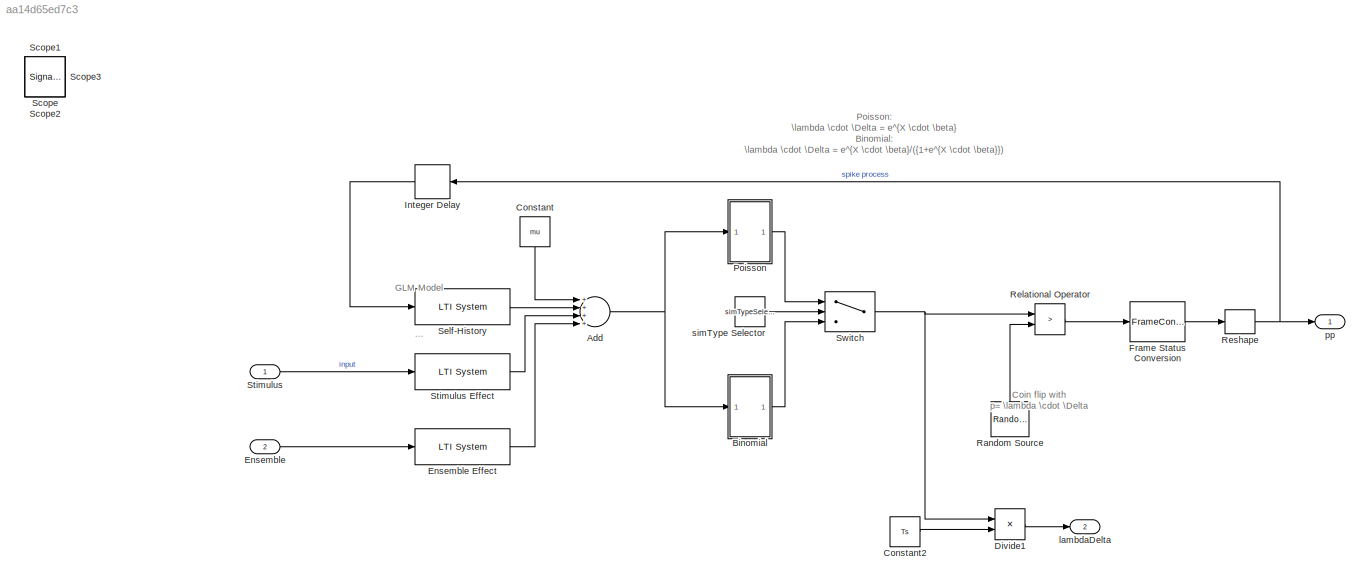
MODEL slx_aa14d65ed7c3
KIND model
BLOCK [Sum] Add
  InputSameDT = off
  Inputs = ++++
  OutDataTypeStr = Inherit: Inherit via internal rule
  Ports = [4, 1]
  SaturateOnIntegerOverflow = off
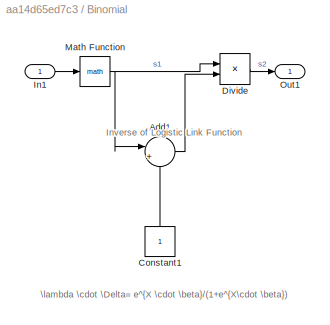
BLOCK [SubSystem] Binomial
  FunctionWithSeparateData = off
  MaskHideContents = off
  MinAlgLoopOccurrences = off
  Opaque = off
  Ports = [1, 1]
  PropExecContextOutsideSubsystem = off
  RTWSystemCode = Auto
  RequestExecContextInheritance = off
BLOCK [Sum] Binomial/Add1
  IconShape = round
  InputSameDT = off
  Inputs = |++
  OutDataTypeStr = Inherit: Inherit via internal rule
  Ports = [2, 1]
  SaturateOnIntegerOverflow = off
BLOCK [Constant] Binomial/Constant1
BLOCK [Product] Binomial/Divide
  InputSameDT = off
  Inputs = */
  OutDataTypeStr = Inherit: Inherit via internal rule
  Ports = [2, 1]
  RndMeth = Floor
  SaturateOnIntegerOverflow = off
BLOCK [Inport] Binomial/In1
  IconDisplay = Port number
BLOCK [Math] Binomial/Math Function
  Ports = [1, 1]
BLOCK [Outport] Binomial/Out1
  IconDisplay = Port number
BLOCK [Constant] Constant
  Value = mu
BLOCK [Constant] Constant2
  Value = Ts
BLOCK [Product] Divide1
  InputSameDT = off
  Inputs = */
  OutDataTypeStr = Inherit: Inherit via internal rule
  Ports = [2, 1]
  RndMeth = Floor
  SaturateOnIntegerOverflow = off
BLOCK [Inport] Ensemble
  IconDisplay = Port number
  Port = 2
BLOCK [Reference] Ensemble Effect  REF=cstblocks/LTI System
  IC = []
  Ports = [1, 1]
  SourceBlock = cstblocks/LTI System
  SourceType = LTI Block
  sys = E
BLOCK [FrameConversion] Frame Status Conversion
  OutFrame = Sample-based
  Ports = [1, 1]
BLOCK [Delay] Integer Delay
  DelayLength = 1
  InputPortMap = u0
  Ports = [1, 1]
  UserDataPersistent = on
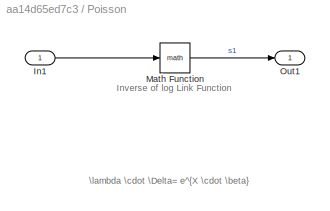
BLOCK [SubSystem] Poisson
  FunctionWithSeparateData = off
  MaskHideContents = off
  MinAlgLoopOccurrences = off
  Opaque = off
  Ports = [1, 1]
  PropExecContextOutsideSubsystem = off
  RTWSystemCode = Auto
  RequestExecContextInheritance = off
BLOCK [Inport] Poisson/In1
  IconDisplay = Port number
BLOCK [Math] Poisson/Math Function
  Ports = [1, 1]
BLOCK [Outport] Poisson/Out1
  IconDisplay = Port number
BLOCK [Reference] Random Source  REF=dspsrcs4/Random
Source
  CltLength = 12
  DataType = Double
  Diagnostics = AllowInheritedTsInSrc
  IsInherit = on
  MaxVal = 1
  MeanVal = 0
  MinVal = 0
  NormMethod = Ziggurat
  OutComplex = Real
  Ports = [0, 1]
  RepMode = Not repeatable
  SampFrame = dsp_sampFrame
  SampMode = Continuous
  SampTime = Ts
  SourceBlock = dspsrcs4/Random\nSource
  SourceType = Random Source
  SrcType = Uniform
  UserDataPersistent = on
  VarVal = 1
  rawSeed = seed
BLOCK [RelationalOperator] Relational Operator
  Operator = >
  OutDataTypeStr = float('double')
  Ports = [2, 1]
BLOCK [Reshape] Reshape
  OutputDimensions = [sampPerFrame,max(length(P),length(seed))]
  Ports = [1, 1]
BLOCK [SignalViewerScope] Scope
  IOType = viewer
  MaxDataPoints = 7500
  NumInputPorts = 1
  Ports = []
  RefreshTime = 0.035000
  ShowDataMarkers = off
  ShowLegends = off
  TimeRange = 10
BLOCK [SignalViewerScope] Scope1
  IOType = viewer
  MaxDataPoints = 7500
  NumInputPorts = 1
  Ports = []
  RefreshTime = 0.035000
  SaveName = ScopeData1
  ShowDataMarkers = off
  ShowLegends = off
BLOCK [SignalViewerScope] Scope2
  IOType = viewer
  MaxDataPoints = 7500
  NumInputPorts = 1
  Ports = []
  RefreshTime = 0.035000
  SaveName = ScopeData2
  ShowDataMarkers = off
  ShowLegends = off
BLOCK [SignalViewerScope] Scope3
  IOType = viewer
  MaxDataPoints = 7500
  NumInputPorts = 1
  Ports = []
  RefreshTime = 0.035000
  SaveName = ScopeData3
  ShowDataMarkers = off
  ShowLegends = off
  TimeRange = 3.199999999999999
  YMax = 0.02380397727272728
  YMin = 0.009803977272727278
BLOCK [Reference] Self-History  REF=cstblocks/LTI System
  IC = []
  Ports = [1, 1]
  SourceBlock = cstblocks/LTI System
  SourceType = LTI Block
  sys = H
BLOCK [Inport] Stimulus
  IconDisplay = Port number
BLOCK [Reference] Stimulus Effect  REF=cstblocks/LTI System
  IC = []
  Ports = [1, 1]
  SourceBlock = cstblocks/LTI System
  SourceType = LTI Block
  sys = S
BLOCK [Switch] Switch
  Criteria = u2 ~= 0
  InputSameDT = off
  SaturateOnIntegerOverflow = off
BLOCK [Outport] lambdaDelta
  IconDisplay = Port number
  Port = 2
BLOCK [Outport] pp
  IconDisplay = Port number
BLOCK [Constant] simType Selector
  Value = simTypeSelect
ANNOTATION (root): Coin flip with p= \lambda \cdot \Delta .
ANNOTATION (root): GLM Model .
ANNOTATION (root): Poisson: \lambda \cdot \Delta = e^{X \cdot \beta} Binomial: \lambda \cdot \Delta = e^{X \cdot \beta}/({1+e^{X \cdot \beta}})
ANNOTATION Binomial: Inverse of Logistic Link Function .
ANNOTATION Binomial: \lambda \cdot \Delta= e^{X \cdot \beta}/(1+e^{X\cdot \beta})
ANNOTATION Poisson: Inverse of log Link Function .
ANNOTATION Poisson: \lambda \cdot \Delta= e^{X \cdot \beta}
NET Add:1 -> Binomial:1, Poisson:1
LINE Binomial/Add1:1 -> Binomial/Divide:2
LINE Binomial/Constant1:1 -> Binomial/Add1:2
LINE Binomial/Divide:1 -> Binomial/Out1:1
LINE Binomial/In1:1 -> Binomial/Math Function:1
NET Binomial/Math Function:1 -> Binomial/Add1:1, Binomial/Divide:1
LINE Binomial:1 -> Switch:3
LINE Constant2:1 -> Divide1:2
LINE Constant:1 -> Add:1
LINE Divide1:1 -> lambdaDelta:1
LINE Ensemble Effect:1 -> Add:4
LINE Ensemble:1 -> Ensemble Effect:1
LINE Frame Status Conversion:1 -> Reshape:1
LINE Integer Delay:1 -> Self-History:1
LINE Poisson/In1:1 -> Poisson/Math Function:1
LINE Poisson/Math Function:1 -> Poisson/Out1:1
LINE Poisson:1 -> Switch:1
LINE Random Source:1 -> Relational Operator:2
LINE Relational Operator:1 -> Frame Status Conversion:1
NET Reshape:1 -> Integer Delay:1, pp:1
LINE Self-History:1 -> Add:2
LINE Stimulus Effect:1 -> Add:3
LINE Stimulus:1 -> Stimulus Effect:1
NET Switch:1 -> Divide1:1, Relational Operator:1
LINE simType Selector:1 -> Switch:2
note: NET lines group one-source signal fan-out (src -> all destinations, sorted); 1:1 wires keep LINE
